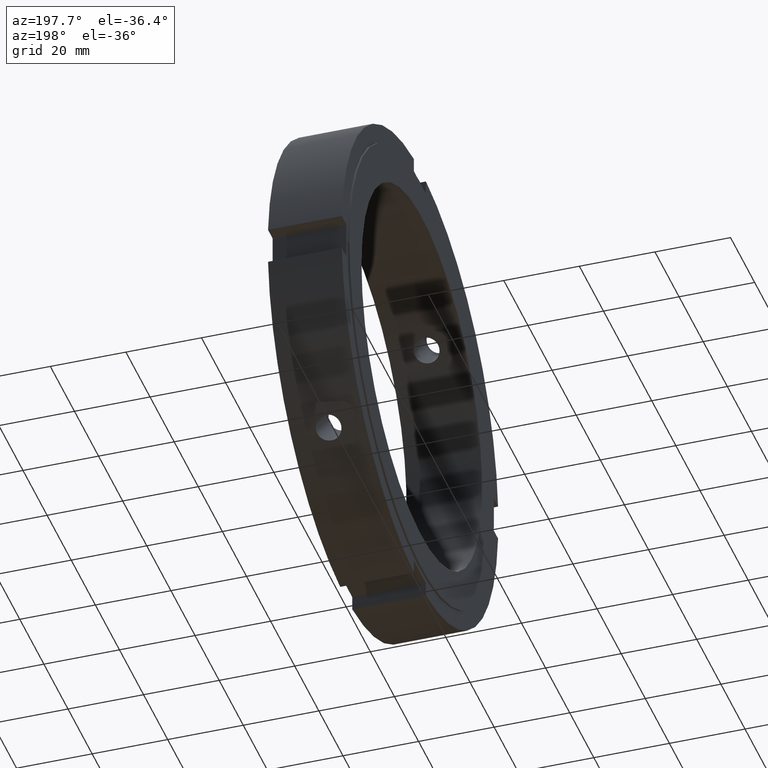
[diagram: clean part render]
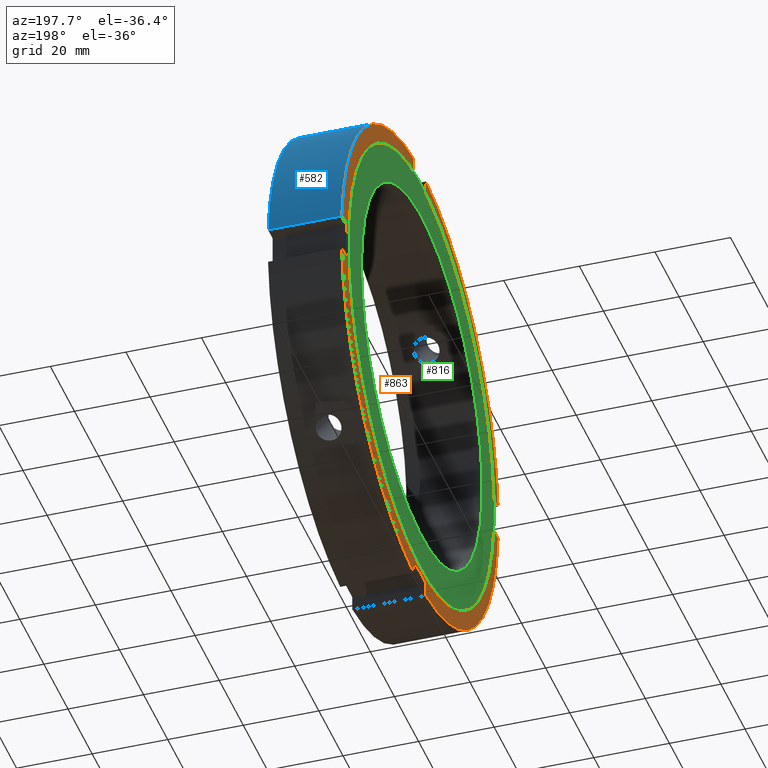
[diagram: same view with three faces highlighted in distinct colors, each labeled with its STEP entity id]
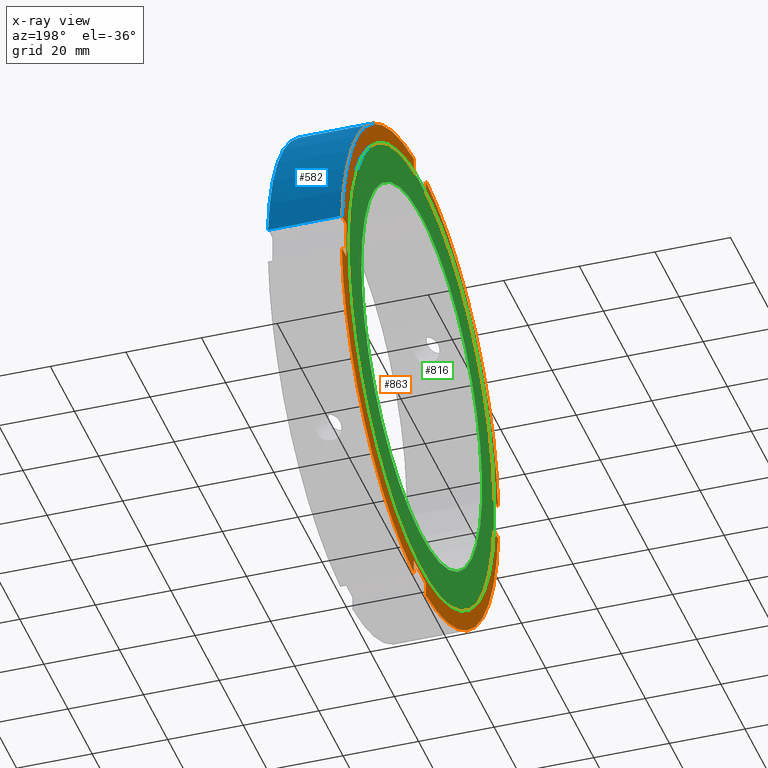
[diagram: x-ray of the same camera — body ghosted, the three highlighted faces saturated]
A machine part, auxiliary view with three faces highlighted in distinct colors.
The next image is the same camera in x-ray (body ghosted, the three faces saturated) — at least one of them is partly hidden behind the body in this view.
Their STEP definitions:

[orange] entity #863 — the highlighted planar face has unit normal (-1, 0, 0).
#249=CARTESIAN_POINT('',(0.499999999999985,-5.000000000000008,-61.0));
#250=VERTEX_POINT('',#249);
#251=CARTESIAN_POINT('',(0.499999999999985,-5.000000000000009,-64.807406984078597));
#252=VERTEX_POINT('',#251);
#253=CARTESIAN_POINT('',(0.499999999999985,-5.000000000000010,-61.0));
#254=DIRECTION('',(0.0,0.0,-1.0));
#255=VECTOR('',#254,3.807406984078597);
#256=LINE('',#253,#255);
#257=EDGE_CURVE('',#250,#252,#256,.T.);
#289=CARTESIAN_POINT('',(0.499999999999985,4.999999999999985,-64.807406984078597));
#290=VERTEX_POINT('',#289);
#291=CARTESIAN_POINT('',(0.499999999999985,4.999999999999986,-61.0));
#292=VERTEX_POINT('',#291);
#293=CARTESIAN_POINT('',(0.499999999999985,4.999999999999981,-64.807406984078597));
#294=DIRECTION('',(0.0,0.0,1.0));
#295=VECTOR('',#294,3.807406984078604);
#296=LINE('',#293,#295);
#297=EDGE_CURVE('',#290,#292,#296,.T.);
#329=CARTESIAN_POINT('',(0.499999999999985,4.999999999999986,-60.999999999999993));
#330=DIRECTION('',(0.0,-1.0,0.0));
#331=VECTOR('',#330,9.999999999999993);
#332=LINE('',#329,#331);
#333=EDGE_CURVE('',#292,#250,#332,.T.);
#351=CARTESIAN_POINT('',(0.499999999999985,-61.0,5.000000000000004));
#352=VERTEX_POINT('',#351);
#353=CARTESIAN_POINT('',(0.499999999999985,-64.807406984078597,5.000000000000005));
#354=VERTEX_POINT('',#353);
#355=CARTESIAN_POINT('',(0.499999999999985,-61.0,5.000000000000004));
#356=DIRECTION('',(0.0,-1.0,0.0));
#357=VECTOR('',#356,3.807406984078611);
#358=LINE('',#355,#357);
#359=EDGE_CURVE('',#352,#354,#358,.T.);
#391=CARTESIAN_POINT('',(0.499999999999985,-64.807406984078597,-4.999999999999989));
#392=VERTEX_POINT('',#391);
#393=CARTESIAN_POINT('',(0.499999999999985,-61.0,-4.999999999999989));
#394=VERTEX_POINT('',#393);
#395=CARTESIAN_POINT('',(0.499999999999985,-64.807406984078611,-4.999999999999989));
#396=DIRECTION('',(0.0,1.0,0.0));
#397=VECTOR('',#396,3.807406984078611);
#398=LINE('',#395,#397);
#399=EDGE_CURVE('',#392,#394,#398,.T.);
#431=CARTESIAN_POINT('',(0.499999999999985,-61.0,-4.999999999999989));
#432=DIRECTION('',(0.0,0.0,1.0));
#433=VECTOR('',#432,9.999999999999993);
#434=LINE('',#431,#433);
#435=EDGE_CURVE('',#394,#352,#434,.T.);
#453=CARTESIAN_POINT('',(0.499999999999985,5.0,61.0));
#454=VERTEX_POINT('',#453);
#455=CARTESIAN_POINT('',(0.499999999999985,5.000000000000001,64.807406984078597));
#456=VERTEX_POINT('',#455);
#457=CARTESIAN_POINT('',(0.499999999999985,5.000000000000002,61.0));
#458=DIRECTION('',(0.0,0.0,1.0));
#459=VECTOR('',#458,3.807406984078597);
#460=LINE('',#457,#459);
#461=EDGE_CURVE('',#454,#456,#460,.T.);
#493=CARTESIAN_POINT('',(0.499999999999985,-4.999999999999993,64.807406984078597));
#494=VERTEX_POINT('',#493);
#495=CARTESIAN_POINT('',(0.499999999999985,-4.999999999999993,61.0));
#496=VERTEX_POINT('',#495);
#497=CARTESIAN_POINT('',(0.499999999999985,-4.999999999999989,64.807406984078597));
#498=DIRECTION('',(0.0,0.0,-1.0));
#499=VECTOR('',#498,3.807406984078597);
#500=LINE('',#497,#499);
#501=EDGE_CURVE('',#494,#496,#500,.T.);
#533=CARTESIAN_POINT('',(0.499999999999985,-4.999999999999989,61.0));
#534=DIRECTION('',(0.0,1.0,0.0));
#535=VECTOR('',#534,9.999999999999989);
#536=LINE('',#533,#535);
#537=EDGE_CURVE('',#496,#454,#536,.T.);
#565=CARTESIAN_POINT('',(0.499999999999985,64.807406984078597,4.999999999999996));
#566=VERTEX_POINT('',#565);
#573=CARTESIAN_POINT('',(0.499999999999985,0.0,0.0));
#574=DIRECTION('',(1.0,0.0,0.0));
#575=DIRECTION('',(0.0,1.0,0.0));
#576=AXIS2_PLACEMENT_3D('',#573,#574,#575);
#577=CIRCLE('',#576,65.0);
#578=EDGE_CURVE('',#566,#456,#577,.T.);
#597=CARTESIAN_POINT('',(0.499999999999985,0.0,0.0));
#598=DIRECTION('',(1.0,0.0,0.0));
#599=DIRECTION('',(0.0,1.0,0.0));
#600=AXIS2_PLACEMENT_3D('',#597,#598,#599);
#601=CIRCLE('',#600,65.0);
#602=EDGE_CURVE('',#494,#354,#601,.T.);
#616=CARTESIAN_POINT('',(0.499999999999985,64.807406984078597,-4.999999999999996));
#617=VERTEX_POINT('',#616);
#618=CARTESIAN_POINT('',(0.499999999999985,0.0,0.0));
#619=DIRECTION('',(1.0,0.0,0.0));
#620=DIRECTION('',(0.0,1.0,0.0));
#621=AXIS2_PLACEMENT_3D('',#618,#619,#620);
#622=CIRCLE('',#621,65.0);
#623=EDGE_CURVE('',#290,#617,#622,.T.);
#660=CARTESIAN_POINT('',(0.499999999999985,0.0,0.0));
#661=DIRECTION('',(1.0,0.0,0.0));
#662=DIRECTION('',(0.0,1.0,0.0));
#663=AXIS2_PLACEMENT_3D('',#660,#661,#662);
#664=CIRCLE('',#663,65.0);
#665=EDGE_CURVE('',#392,#252,#664,.T.);
#729=CARTESIAN_POINT('',(0.499999999999985,61.0,-4.999999999999996));
#730=VERTEX_POINT('',#729);
#731=CARTESIAN_POINT('',(0.499999999999985,61.0,-4.999999999999996));
#732=DIRECTION('',(0.0,1.0,0.0));
#733=VECTOR('',#732,3.807406984078611);
#734=LINE('',#731,#733);
#735=EDGE_CURVE('',#730,#617,#734,.T.);
#753=CARTESIAN_POINT('',(0.499999999999985,61.0,4.999999999999996));
#754=VERTEX_POINT('',#753);
#755=CARTESIAN_POINT('',(0.499999999999985,64.807406984078597,4.999999999999996));
#756=DIRECTION('',(0.0,-1.0,0.0));
#757=VECTOR('',#756,3.807406984078597);
#758=LINE('',#755,#757);
#759=EDGE_CURVE('',#566,#754,#758,.T.);
#777=CARTESIAN_POINT('',(0.499999999999985,61.0,4.999999999999996));
#778=DIRECTION('',(0.0,0.0,-1.0));
#779=VECTOR('',#778,9.999999999999993);
#780=LINE('',#777,#779);
#781=EDGE_CURVE('',#754,#730,#780,.T.);
#822=CARTESIAN_POINT('',(0.499999999999985,60.0,0.0));
#823=VERTEX_POINT('',#822);
#824=CARTESIAN_POINT('',(0.499999999999985,0.0,0.0));
#825=DIRECTION('',(1.0,0.0,0.0));
#826=DIRECTION('',(0.0,1.0,0.0));
#827=AXIS2_PLACEMENT_3D('',#824,#825,#826);
#828=CIRCLE('',#827,60.0);
#829=EDGE_CURVE('',#823,#823,#828,.T.);
#837=CARTESIAN_POINT('',(0.499999999999985,62.500000000000000,0.0));
#838=DIRECTION('',(-1.0,0.0,0.0));
#839=DIRECTION('',(0.0,0.0,1.0));
#840=AXIS2_PLACEMENT_3D('',#837,#838,#839);
#841=PLANE('',#840);
#842=ORIENTED_EDGE('',*,*,#257,.T.);
#843=ORIENTED_EDGE('',*,*,#665,.F.);
#844=ORIENTED_EDGE('',*,*,#399,.T.);
#845=ORIENTED_EDGE('',*,*,#435,.T.);
#846=ORIENTED_EDGE('',*,*,#359,.T.);
#847=ORIENTED_EDGE('',*,*,#602,.F.);
#848=ORIENTED_EDGE('',*,*,#501,.T.);
#849=ORIENTED_EDGE('',*,*,#537,.T.);
#850=ORIENTED_EDGE('',*,*,#461,.T.);
#851=ORIENTED_EDGE('',*,*,#578,.F.);
#852=ORIENTED_EDGE('',*,*,#759,.T.);
#853=ORIENTED_EDGE('',*,*,#781,.T.);
#854=ORIENTED_EDGE('',*,*,#735,.T.);
#855=ORIENTED_EDGE('',*,*,#623,.F.);
#856=ORIENTED_EDGE('',*,*,#297,.T.);
#857=ORIENTED_EDGE('',*,*,#333,.T.);
#858=EDGE_LOOP('',(#842,#843,#844,#845,#846,#847,#848,#849,#850,#851,#852,#853,#854,#855,#856,#857));
#859=FACE_OUTER_BOUND('',#858,.T.);
#860=ORIENTED_EDGE('',*,*,#829,.T.);
#861=EDGE_LOOP('',(#860));
#862=FACE_BOUND('',#861,.T.);
#863=ADVANCED_FACE('',(#859,#862),#841,.T.);

[blue] entity #582 — the highlighted cylindrical surface (partial cylindrical patch) has radius 65 mm, axis along (1, 0, 0).
#455=CARTESIAN_POINT('',(0.499999999999985,5.000000000000001,64.807406984078597));
#456=VERTEX_POINT('',#455);
#471=CARTESIAN_POINT('',(19.999999999999986,5.000000000000001,64.807406984078597));
#472=VERTEX_POINT('',#471);
#479=CARTESIAN_POINT('',(0.499999999999986,5.0,64.807406984078597));
#480=DIRECTION('',(1.0,0.0,0.0));
#481=VECTOR('',#480,19.500000000000000);
#482=LINE('',#479,#481);
#483=EDGE_CURVE('',#456,#472,#482,.T.);
#550=CARTESIAN_POINT('',(10.249999999999986,0.0,0.0));
#551=DIRECTION('',(1.0,0.0,0.0));
#552=DIRECTION('',(0.0,1.0,0.0));
#553=AXIS2_PLACEMENT_3D('',#550,#551,#552);
#554=CYLINDRICAL_SURFACE('',#553,65.0);
#555=ORIENTED_EDGE('',*,*,#483,.T.);
#556=CARTESIAN_POINT('',(19.999999999999986,64.807406984078597,4.999999999999996));
#557=VERTEX_POINT('',#556);
#558=CARTESIAN_POINT('',(19.999999999999986,0.0,0.0));
#559=DIRECTION('',(1.0,0.0,0.0));
#560=DIRECTION('',(0.0,1.0,0.0));
#561=AXIS2_PLACEMENT_3D('',#558,#559,#560);
#562=CIRCLE('',#561,65.0);
#563=EDGE_CURVE('',#557,#472,#562,.T.);
#564=ORIENTED_EDGE('',*,*,#563,.F.);
#565=CARTESIAN_POINT('',(0.499999999999985,64.807406984078597,4.999999999999996));
#566=VERTEX_POINT('',#565);
#567=CARTESIAN_POINT('',(19.999999999999986,64.807406984078597,4.999999999999996));
#568=DIRECTION('',(-1.0,0.0,0.0));
#569=VECTOR('',#568,19.500000000000000);
#570=LINE('',#567,#569);
#571=EDGE_CURVE('',#557,#566,#570,.T.);
#572=ORIENTED_EDGE('',*,*,#571,.T.);
#573=CARTESIAN_POINT('',(0.499999999999985,0.0,0.0));
#574=DIRECTION('',(1.0,0.0,0.0));
#575=DIRECTION('',(0.0,1.0,0.0));
#576=AXIS2_PLACEMENT_3D('',#573,#574,#575);
#577=CIRCLE('',#576,65.0);
#578=EDGE_CURVE('',#566,#456,#577,.T.);
#579=ORIENTED_EDGE('',*,*,#578,.T.);
#580=EDGE_LOOP('',(#555,#564,#572,#579));
#581=FACE_OUTER_BOUND('',#580,.T.);
#582=ADVANCED_FACE('',(#581),#554,.T.);

[green] entity #816 — the highlighted planar face has unit normal (-1, 0, 0).
#789=CARTESIAN_POINT('',(-1.608876E-014,55.0,0.0));
#790=DIRECTION('',(-1.0,0.0,0.0));
#791=DIRECTION('',(0.0,0.0,1.0));
#792=AXIS2_PLACEMENT_3D('',#789,#790,#791);
#793=PLANE('',#792);
#794=CARTESIAN_POINT('',(-1.776357E-014,60.0,0.0));
#795=VERTEX_POINT('',#794);
#796=CARTESIAN_POINT('',(-1.776357E-014,0.0,0.0));
#797=DIRECTION('',(1.0,0.0,0.0));
#798=DIRECTION('',(0.0,1.0,0.0));
#799=AXIS2_PLACEMENT_3D('',#796,#797,#798);
#800=CIRCLE('',#799,60.0);
#801=EDGE_CURVE('',#795,#795,#800,.T.);
#802=ORIENTED_EDGE('',*,*,#801,.F.);
#803=EDGE_LOOP('',(#802));
#804=FACE_OUTER_BOUND('',#803,.T.);
#805=CARTESIAN_POINT('',(-1.441396E-014,50.0,0.0));
#806=VERTEX_POINT('',#805);
#807=CARTESIAN_POINT('',(-1.441555E-014,0.0,0.0));
#808=DIRECTION('',(1.0,0.0,0.0));
#809=DIRECTION('',(0.0,1.0,0.0));
#810=AXIS2_PLACEMENT_3D('',#807,#808,#809);
#811=CIRCLE('',#810,50.0);
#812=EDGE_CURVE('',#806,#806,#811,.T.);
#813=ORIENTED_EDGE('',*,*,#812,.T.);
#814=EDGE_LOOP('',(#813));
#815=FACE_BOUND('',#814,.T.);
#816=ADVANCED_FACE('',(#804,#815),#793,.T.);